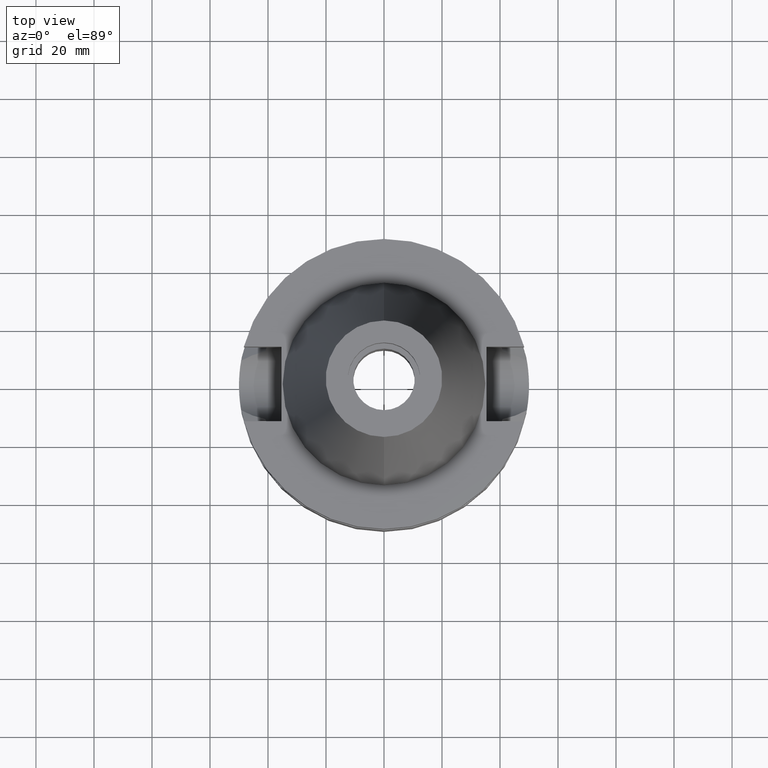
[diagram: clean part render]
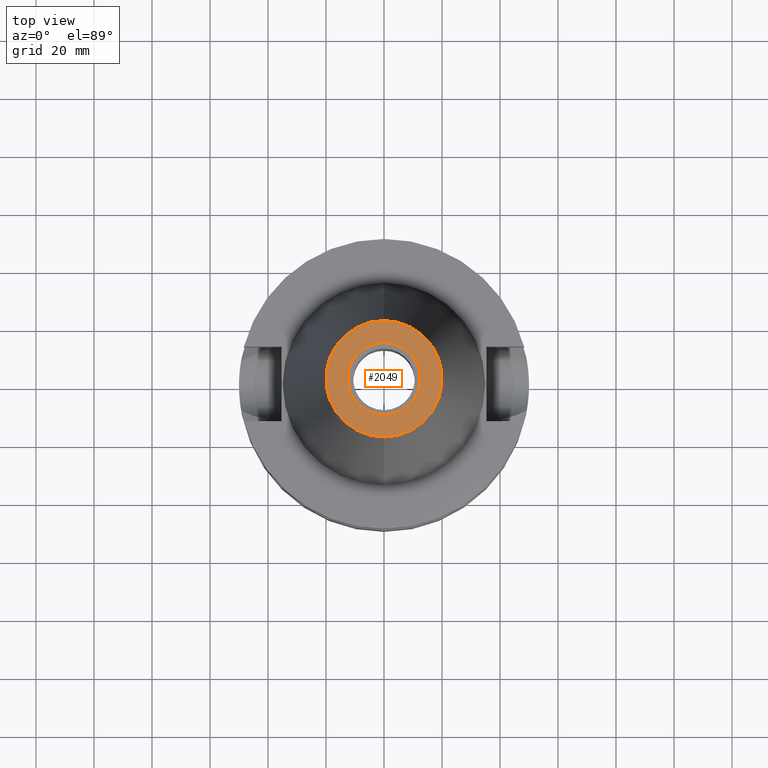
[diagram: same view with one face highlighted and labeled with its STEP entity id]
A machine part, top view. The second image highlights one B-rep face of the part: STEP entity #2049.
In plain terms, the highlighted planar face has unit normal (0, 0, -1).
Its self-contained STEP definition (entity closure, byte-faithful):
#1024=CARTESIAN_POINT('',(0.E0,1.847992019913E-14,1.018E2));
#1025=DIRECTION('',(0.E0,0.E0,-1.E0));
#1026=DIRECTION('',(0.E0,-1.E0,0.E0));
#1027=AXIS2_PLACEMENT_3D('',#1024,#1025,#1026);
#1032=CARTESIAN_POINT('',(0.E0,1.847992019913E-14,1.018E2));
#1033=DIRECTION('',(0.E0,0.E0,-1.E0));
#1034=DIRECTION('',(0.E0,1.E0,0.E0));
#1035=AXIS2_PLACEMENT_3D('',#1032,#1033,#1034);
#1040=CARTESIAN_POINT('',(0.E0,2.599190366510E-14,1.018E2));
#1041=DIRECTION('',(0.E0,0.E0,1.E0));
#1042=DIRECTION('',(0.E0,-1.E0,0.E0));
#1043=AXIS2_PLACEMENT_3D('',#1040,#1041,#1042);
#1048=CARTESIAN_POINT('',(0.E0,2.599190366510E-14,1.018E2));
#1049=DIRECTION('',(0.E0,0.E0,1.E0));
#1050=DIRECTION('',(0.E0,1.E0,0.E0));
#1051=AXIS2_PLACEMENT_3D('',#1048,#1049,#1050);
#1057=CARTESIAN_POINT('',(0.E0,1.25E1,1.018E2));
#1059=VERTEX_POINT('',#1057);
#1060=CARTESIAN_POINT('',(0.E0,-1.25E1,1.018E2));
#1061=VERTEX_POINT('',#1060);
#1209=CARTESIAN_POINT('',(0.E0,2.007942971896E1,1.018E2));
#1210=VERTEX_POINT('',#1209);
#1211=CARTESIAN_POINT('',(0.E0,-2.007942971896E1,1.018E2));
#1212=VERTEX_POINT('',#1211);
#2036=CARTESIAN_POINT('',(0.E0,2.471337240679E-14,1.018E2));
#2037=DIRECTION('',(0.E0,0.E0,-1.E0));
#2038=DIRECTION('',(0.E0,-1.E0,0.E0));
#2039=AXIS2_PLACEMENT_3D('',#2036,#2037,#2038);
#2040=PLANE('',#2039);
#2041=ORIENTED_EDGE('',*,*,#2015,.T.);
#2042=ORIENTED_EDGE('',*,*,#2031,.T.);
#2043=EDGE_LOOP('',(#2041,#2042));
#2044=FACE_OUTER_BOUND('',#2043,.F.);
#2045=ORIENTED_EDGE('',*,*,#1228,.T.);
#2046=ORIENTED_EDGE('',*,*,#1246,.T.);
#2047=EDGE_LOOP('',(#2045,#2046));
#2048=FACE_BOUND('',#2047,.F.);
#1028=CIRCLE('',#1027,2.007942971896E1);
#1036=CIRCLE('',#1035,2.007942971896E1);
#1044=CIRCLE('',#1043,1.25E1);
#1052=CIRCLE('',#1051,1.25E1);
#1228=EDGE_CURVE('',#1061,#1059,#1044,.T.);
#1246=EDGE_CURVE('',#1059,#1061,#1052,.T.);
#2015=EDGE_CURVE('',#1212,#1210,#1028,.T.);
#2031=EDGE_CURVE('',#1210,#1212,#1036,.T.);
#2049=ADVANCED_FACE('',(#2044,#2048),#2040,.F.);